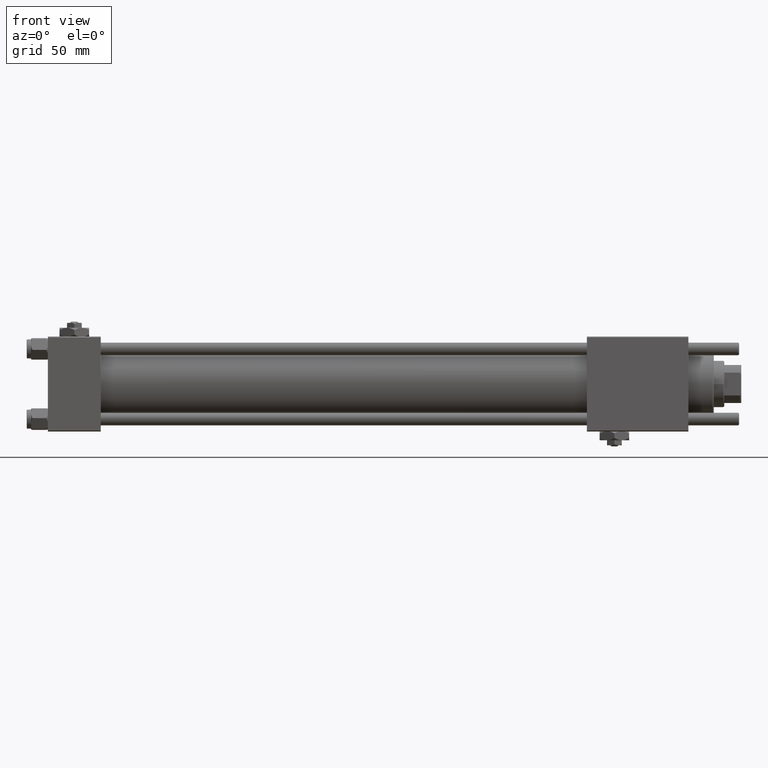
[diagram: clean part render]
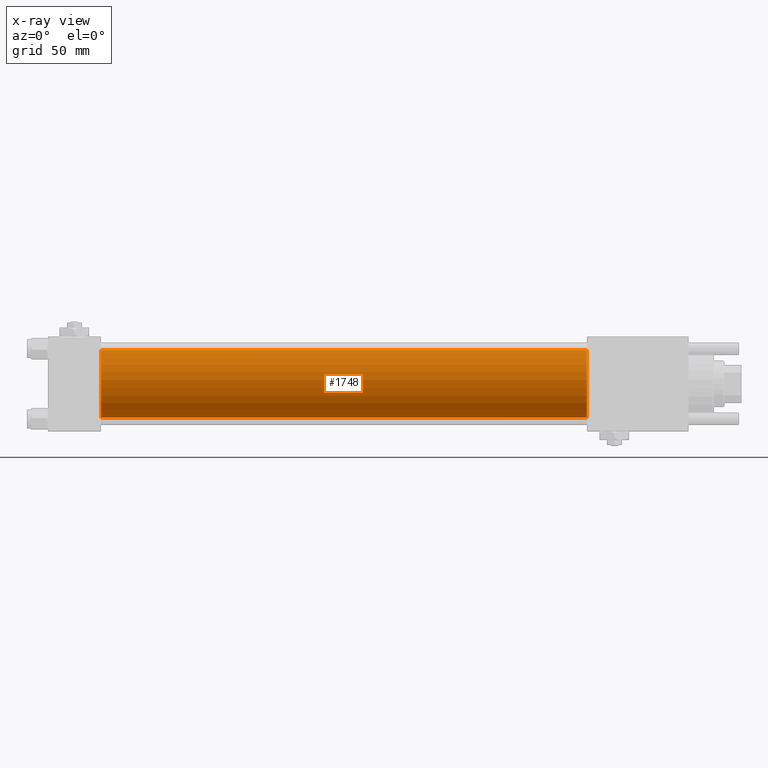
[diagram: x-ray — body ghosted, one internal face saturated and labeled with its STEP entity id]
A machine part, front view, then the same camera in x-ray: the body is ghosted and one INTERNAL B-rep face — a face not visible from any outside direction — is saturated and labeled: STEP entity #1748.
In plain terms, the highlighted cylindrical surface (edge-blend (fillet) strip) has radius 16 mm, axis along (-1, -0, -0).
Its self-contained STEP definition (entity closure, byte-faithful):
#1748 = ADVANCED_FACE ( 'NONE', ( #28338 ), #29229, .F. ) ;
#1840 = CIRCLE ( 'NONE', #14425, 16.00000000000000000 ) ;
#5882 = CARTESIAN_POINT ( 'NONE',  ( 25.00000000000000000, -6.426503353294456087E-16, -16.00000000000000000 ) ) ;
#5927 = EDGE_CURVE ( 'NONE', #40631, #40073, #1840, .T. ) ;
#6643 = CARTESIAN_POINT ( 'NONE',  ( 25.00000000000000000, -2.602085213965210642E-15, 16.00000000000000000 ) ) ;
#8022 = CIRCLE ( 'NONE', #22570, 16.00000000000000000 ) ;
#10393 = AXIS2_PLACEMENT_3D ( 'NONE', #33484, #43506, #33789 ) ;
#14425 = AXIS2_PLACEMENT_3D ( 'NONE', #33017, #43324, #37576 ) ;
#15492 = VERTEX_POINT ( 'NONE', #48116 ) ;
#16165 = LINE ( 'NONE', #34671, #41808 ) ;
#18971 = VERTEX_POINT ( 'NONE', #40932 ) ;
#22570 = AXIS2_PLACEMENT_3D ( 'NONE', #26622, #53953, #49109 ) ;
#26528 = DIRECTION ( 'NONE',  ( -1.000000000000000000, -0.000000000000000000, -0.000000000000000000 ) ) ;
#26622 = CARTESIAN_POINT ( 'NONE',  ( 255.0000000000000000, -2.602085213965210642E-15, 0.000000000000000000 ) ) ;
#28338 = FACE_OUTER_BOUND ( 'NONE', #52176, .T. ) ;
#29229 = CYLINDRICAL_SURFACE ( 'NONE', #10393, 16.00000000000000000 ) ;
#31801 = EDGE_CURVE ( 'NONE', #18971, #40073, #16165, .T. ) ;
#31978 = LINE ( 'NONE', #55048, #45946 ) ;
#33017 = CARTESIAN_POINT ( 'NONE',  ( 25.00000000000000000, -2.602085213965210642E-15, 0.000000000000000000 ) ) ;
#33484 = CARTESIAN_POINT ( 'NONE',  ( 255.0000000000000000, -2.602085213965210642E-15, 0.000000000000000000 ) ) ;
#33789 = DIRECTION ( 'NONE',  ( 0.000000000000000000, 0.000000000000000000, 1.000000000000000000 ) ) ;
#34671 = CARTESIAN_POINT ( 'NONE',  ( 255.0000000000000000, -6.426503353294456087E-16, -16.00000000000000000 ) ) ;
#37308 = ORIENTED_EDGE ( 'NONE', *, *, #47005, .F. ) ;
#37576 = DIRECTION ( 'NONE',  ( 0.000000000000000000, 0.000000000000000000, -1.000000000000000000 ) ) ;
#39171 = EDGE_CURVE ( 'NONE', #15492, #18971, #8022, .T. ) ;
#40073 = VERTEX_POINT ( 'NONE', #5882 ) ;
#40631 = VERTEX_POINT ( 'NONE', #6643 ) ;
#40932 = CARTESIAN_POINT ( 'NONE',  ( 255.0000000000000000, -6.426503353294456087E-16, -16.00000000000000000 ) ) ;
#41808 = VECTOR ( 'NONE', #53194, 1000.000000000000000 ) ;
#42225 = ORIENTED_EDGE ( 'NONE', *, *, #39171, .T. ) ;
#43324 = DIRECTION ( 'NONE',  ( 1.000000000000000000, 0.000000000000000000, 0.000000000000000000 ) ) ;
#43506 = DIRECTION ( 'NONE',  ( -1.000000000000000000, -0.000000000000000000, -0.000000000000000000 ) ) ;
#45946 = VECTOR ( 'NONE', #26528, 1000.000000000000000 ) ;
#47005 = EDGE_CURVE ( 'NONE', #15492, #40631, #31978, .T. ) ;
#48116 = CARTESIAN_POINT ( 'NONE',  ( 255.0000000000000000, -2.602085213965210642E-15, 16.00000000000000000 ) ) ;
#49109 = DIRECTION ( 'NONE',  ( 0.000000000000000000, 0.000000000000000000, -1.000000000000000000 ) ) ;
#49140 = ORIENTED_EDGE ( 'NONE', *, *, #5927, .F. ) ;
#52176 = EDGE_LOOP ( 'NONE', ( #42225, #53496, #49140, #37308 ) ) ;
#53194 = DIRECTION ( 'NONE',  ( -1.000000000000000000, -0.000000000000000000, -0.000000000000000000 ) ) ;
#53496 = ORIENTED_EDGE ( 'NONE', *, *, #31801, .T. ) ;
#53953 = DIRECTION ( 'NONE',  ( 1.000000000000000000, 0.000000000000000000, 0.000000000000000000 ) ) ;
#55048 = CARTESIAN_POINT ( 'NONE',  ( 255.0000000000000000, -2.602085213965210642E-15, 16.00000000000000000 ) ) ;